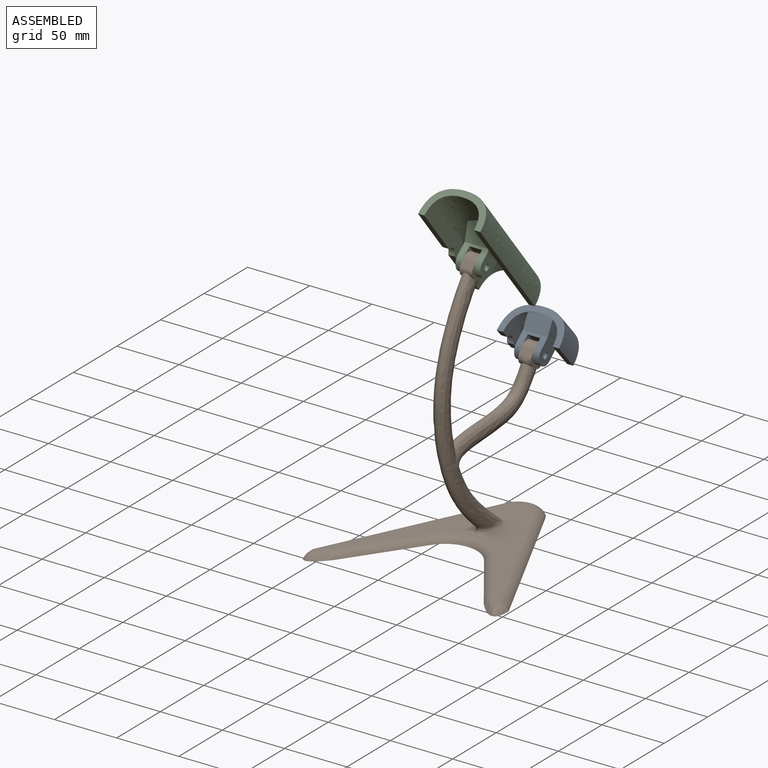
[diagram: assembled view]
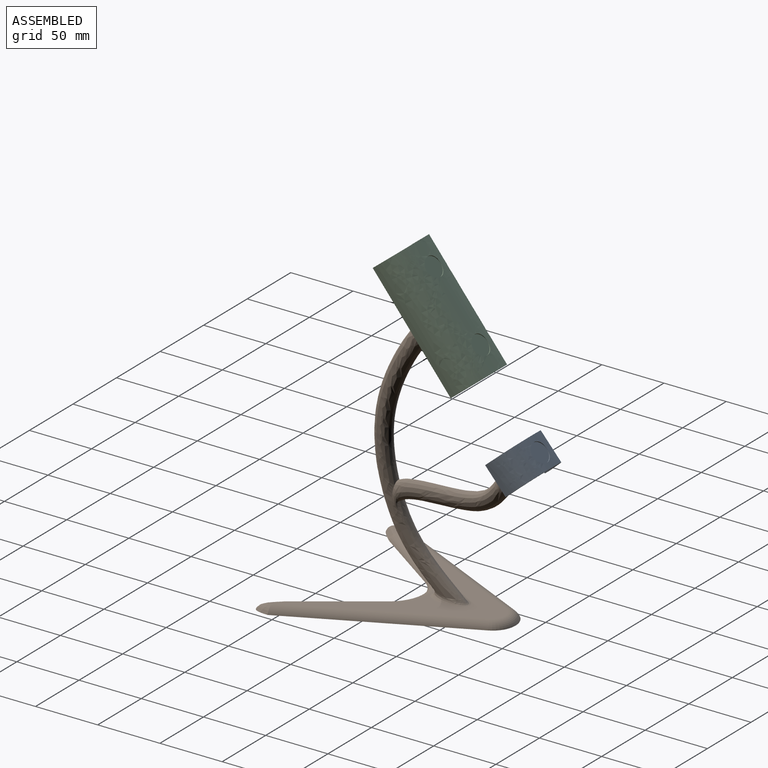
[diagram: assembled view, second angle]
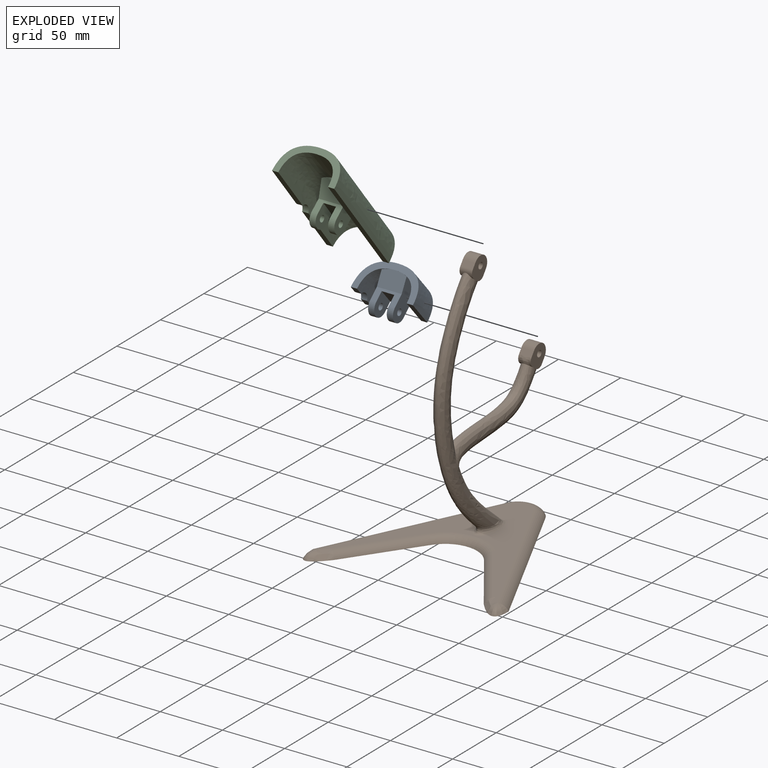
[diagram: exploded view]
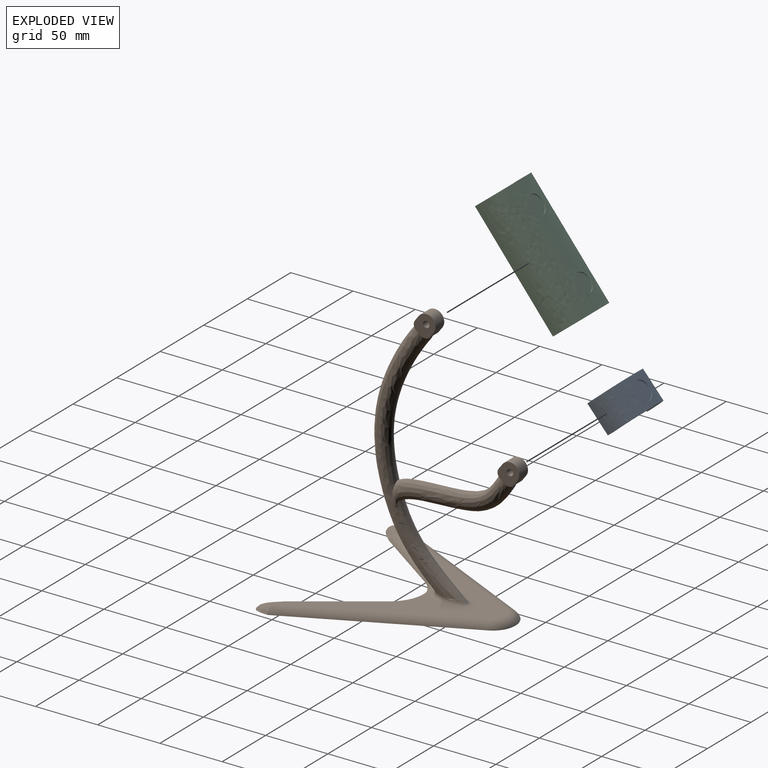
[diagram: exploded view, second angle]
ASSEMBLY  parts=3 mates=2
PART A: 25 faces, bbox 50x25x35.5 mm
  f0: plane 7.3x5mm, normal (0,0,-1), area 36.5mm2, adj f1,f17,f20,f24
  f1: extruded ~25x25mm, area 891.4mm2, adj f0,f2,f18,f20,f21,f22,f24
  f2: extruded ~25x25mm, area 913.5mm2, adj f1,f19,f20,f21,f22
  f3: plane 20x13mm, normal (0,-0.93,-0.36), area 267.4mm2, adj f5,f6,f7,f16,f17
  f4: plane 20x13mm, normal (0,0.93,-0.36), area 267.4mm2, adj f5,f6,f10,f16,f17
  f5: plane 28.78x23.68mm, normal (1,0,0), area 436.2mm2, adj f3,f4,f7,f8,f10,f11,f16
  f6: plane 28.78x23.68mm, normal (-1,0,0), area 436.2mm2, adj f3,f4,f7,f9,f10,f12,f17
  f7: plane 20x10mm, normal (0,-1,0), area 119.2mm2, adj f3,f5,f6,f8,f9,f13,f14,f15
  f8: cylinder r=7.5mm len=15mm, axis (-1,0,0), area 116.6mm2, adj f5,f7,f10,f14
  f9: cylinder r=7.5mm len=15mm, axis (-1,0,0), area 116.6mm2, adj f6,f7,f10,f15
  f10: plane 20x10mm, normal (0,1,0), area 119.2mm2, adj f4,f5,f6,f8,f9,f13,f14,f15
  f11: cylinder r=2.55mm len=5.1mm, axis (-1,0,0), area 79.3mm2, adj f5,f14
  f12: cylinder r=2.55mm len=5.1mm, axis (-1,0,0), area 79.3mm2, adj f6,f15
  f13: plane 15x10.1mm, normal (0,0,-1), area 151.5mm2, adj f7,f10,f14,f15
  f14: plane 15.5x15mm, normal (-1,0,0), area 187.9mm2, adj f7,f8,f10,f11,f13
  f15: plane 15.5x15mm, normal (1,0,0), area 187.9mm2, adj f7,f9,f10,f12,f13
  f16: extruded ~25x20mm, area 560.5mm2, adj f3,f4,f5,f19,f20,f21
  f17: extruded ~25x20mm, area 538.4mm2, adj f0,f3,f4,f6,f18,f20,f21,f24
  f18: plane 7.3x5mm, normal (0,0,-1), area 36.5mm2, adj f1,f17,f21,f24
  f19: plane 25x5mm, normal (0,0,-1), area 125mm2, adj f2,f16,f20,f21
  f20: plane 50x25mm, normal (0,-1,0), area 375mm2, adj f0,f1,f2,f16,f17,f19
  f21: plane 50x25mm, normal (0,1,0), area 375mm2, adj f1,f2,f16,f17,f18,f19
  f22: cylinder r=8mm len=16mm, axis (0,0,-1), area 31.5mm2, adj f1,f2,f23
  f23: plane 16x16mm, normal (0,0,1), area 201.1mm2, adj f22
  f24: cylinder r=6mm len=10.39mm, axis (1,0,0), area 63mm2, adj f0,f1,f17,f18
PART B: 52 faces, bbox 162.9x166.6x216.4 mm
  f0: plane 1.14x0.86mm, normal (0,-0.6,-0.8), area 0.1mm2, adj f3,f44,f50
  f1: plane 3.16x2.44mm, normal (0,-0.6,-0.8), area 0.9mm2, adj f3,f43,f49
  f2: plane 6.99x2.89mm, normal (0,1,0.06), area 10.5mm2, adj f3,f50
  f3: bspline ~100.95x67.48mm, area 3712.5mm2, adj f0,f1,f2,f16,f33,f38,f40,f48
  f4: plane 2.93x2.26mm, normal (0,-0.6,-0.8), area 0.6mm2, adj f11,f13,f33
  f5: plane 1.37x1.04mm, normal (0,-0.6,-0.8), area 0.1mm2, adj f11,f14,f33
  f6: plane 1.38x1.04mm, normal (0,-0.6,-0.8), area 0.1mm2, adj f12,f14,f33
  f7: plane 10x4mm, normal (0,-0.8,0.6), area 50mm2, adj f10,f11,f12,f13
  f8: plane 2.93x2.27mm, normal (0,-0.6,-0.8), area 0.6mm2, adj f12,f13,f33
  f9: plane 10x4mm, normal (0,0.8,-0.6), area 50mm2, adj f10,f11,f12,f14
  f10: cylinder r=7.5mm len=13.5mm, axis (-1,0,0), area 235.6mm2, adj f7,f9,f11,f12
  f11: plane 18x17.5mm, normal (1,0,0), area 207.2mm2, adj f4,f5,f7,f9,f10,f13,f14,f46
  f12: plane 18x17.5mm, normal (-1,0,0), area 207.2mm2, adj f6,f7,f8,f9,f10,f13,f14,f46
  f13: cylinder r=5mm len=10mm, axis (1,0,0), area 51.8mm2, adj f4,f7,f8,f11,f12,f33
  f14: cylinder r=5mm len=10mm, axis (-1,0,0), area 43.6mm2, adj f5,f6,f9,f11,f12,f32,f33
  f15: bspline ~101.26x74.9mm, area 755.1mm2, adj f31,f34,f35,f36,f37,f51
  f16: bspline ~64.04x57.03mm, area 1362.1mm2, adj f3,f31,f34,f35,f36,f37,f51
  f17: plane 144.45x137.4mm, normal (0,0,1), area 3778.5mm2, adj f19,f20,f21,f23,f24,f25,f26,f28
  f18: plane 162.91x159.71mm, normal (0,0,-1), area 8533.2mm2, adj f19,f20,f21,f22,f23,f24,f25,f26
  f19: cylinder r=8.5mm len=60.44mm, axis (-0.57,-0.82,0), area 663.5mm2, adj f17,f18,f20,f21
  f20: bspline ~20.69x19.21mm, area 110.6mm2, adj f17,f18,f19,f22
  f21: torus R=33.34mm, axis (0,0,1), area 543.5mm2, adj f17,f18,f19,f23
  f22: bspline ~12.02x9.79mm, area 86.8mm2, adj f18,f20,f24
  f23: cylinder r=8.5mm len=60.44mm, axis (-0.57,0.82,0), area 663.5mm2, adj f17,f18,f21,f25
  f24: bspline ~8.11x6.86mm, area 33.2mm2, adj f17,f18,f22,f26
  f25: bspline ~20.14x18.88mm, area 110.6mm2, adj f17,f18,f23,f27
  f26: cylinder r=8.5mm len=136.22mm, axis (0.43,0.9,0), area 1426.2mm2, adj f17,f18,f24,f28
  f27: bspline ~12.02x9.79mm, area 87.6mm2, adj f18,f25,f29
  f28: torus R=10.54mm, axis (0,0,-1), area 326.7mm2, adj f17,f18,f26,f30
  f29: bspline ~8.19x7.52mm, area 33.2mm2, adj f17,f18,f27,f30
  f30: cylinder r=8.5mm len=136.22mm, axis (0.43,-0.9,0), area 1426.2mm2, adj f17,f18,f28,f29
  f31: bspline ~54.65x52.72mm, area 355.2mm2, adj f15,f16,f33
  f32: plane 6.59x2.56mm, normal (0,1,0), area 8.8mm2, adj f14,f33
  f33: bspline ~163.53x44.32mm, area 5328.6mm2, adj f3,f4,f5,f6,f8,f13,f14,f31
  f34: bspline ~62.28x45.66mm, area 6.8mm2, adj f15,f16
  f35: bspline ~62.28x45.66mm, area 6.8mm2, adj f15,f16
  f36: bspline ~48.25x26.23mm, area 18.2mm2, adj f15,f16,f51
  f37: bspline ~48.25x26.23mm, area 19.4mm2, adj f15,f16,f51
  f38: plane 1.14x0.86mm, normal (0,-0.6,-0.8), area 0.1mm2, adj f3,f43,f50
  f39: plane 10x4.73mm, normal (0,-0.8,0.6), area 53.3mm2, adj f42,f43,f44,f47,f48,f49
  f40: plane 3.17x2.45mm, normal (0,-0.6,-0.8), area 0.9mm2, adj f3,f44,f47
  f41: plane 10x4mm, normal (0,0.8,-0.6), area 50mm2, adj f42,f43,f44,f50
  f42: cylinder r=7.5mm len=13.5mm, axis (-1,0,0), area 235.6mm2, adj f39,f41,f43,f44
  f43: plane 18x17.5mm, normal (1,0,0), area 207.2mm2, adj f1,f38,f39,f41,f42,f45,f49,f50
  f44: plane 18x17.5mm, normal (-1,0,0), area 207.2mm2, adj f0,f39,f40,f41,f42,f45,f47,f50
  f45: cylinder r=2.55mm len=10mm, axis (-1,0,0), area 160.2mm2, adj f43,f44
  f46: cylinder r=2.55mm len=10mm, axis (-1,0,0), area 160.2mm2, adj f11,f12
  f47: cylinder r=5mm len=7mm, axis (1,0,0), area 6.3mm2, adj f39,f40,f44,f48
  f48: bspline ~9.52x7.2mm, area 49.4mm2, adj f3,f39,f47,f49
  f49: cylinder r=5mm len=7mm, axis (1,0,0), area 6.3mm2, adj f1,f39,f43,f48
  f50: cylinder r=5mm len=10mm, axis (-1,0,0), area 45.8mm2, adj f0,f2,f3,f38,f41,f43,f44
  f51: bspline ~30.64x15.99mm, area 298.2mm2, adj f15,f16,f17,f36,f37
PART C: 27 faces, bbox 50x100x35.5 mm
  f0: plane 44.8x5mm, normal (0,0,-1), area 224mm2, adj f1,f17,f20,f26
  f1: extruded ~100x25mm, area 3834mm2, adj f0,f2,f18,f20,f21,f22,f24,f26
  f2: extruded ~100x25mm, area 3856.1mm2, adj f1,f19,f20,f21,f22,f24
  f3: plane 20x13mm, normal (0,-0.79,-0.61), area 314.8mm2, adj f5,f6,f7,f16,f17
  f4: plane 20x13mm, normal (0,0.79,-0.61), area 314.8mm2, adj f5,f6,f10,f16,f17
  f5: plane 32.36x28.78mm, normal (1,0,0), area 485.1mm2, adj f3,f4,f7,f8,f10,f11,f16
  f6: plane 32.36x28.78mm, normal (-1,0,0), area 485.1mm2, adj f3,f4,f7,f9,f10,f12,f17
  f7: plane 20x10mm, normal (0,-1,0), area 119.2mm2, adj f3,f5,f6,f8,f9,f13,f14,f15
  f8: cylinder r=7.5mm len=15mm, axis (-1,0,0), area 116.6mm2, adj f5,f7,f10,f14
  f9: cylinder r=7.5mm len=15mm, axis (-1,0,0), area 116.6mm2, adj f6,f7,f10,f15
  f10: plane 20x10mm, normal (0,1,0), area 119.2mm2, adj f4,f5,f6,f8,f9,f13,f14,f15
  f11: cylinder r=2.55mm len=5.1mm, axis (-1,0,0), area 79.3mm2, adj f5,f14
  f12: cylinder r=2.55mm len=5.1mm, axis (-1,0,0), area 79.3mm2, adj f6,f15
  f13: plane 15x10.1mm, normal (0,0,-1), area 151.5mm2, adj f7,f10,f14,f15
  f14: plane 15.5x15mm, normal (-1,0,0), area 187.9mm2, adj f7,f8,f10,f11,f13
  f15: plane 15.5x15mm, normal (1,0,0), area 187.9mm2, adj f7,f9,f10,f12,f13
  f16: extruded ~100x20mm, area 2897.5mm2, adj f3,f4,f5,f17,f19,f20,f21
  f17: extruded ~100x20mm, area 2875.3mm2, adj f0,f3,f4,f6,f16,f18,f20,f21
  f18: plane 44.8x5mm, normal (0,0,-1), area 224mm2, adj f1,f17,f21,f26
  f19: plane 100x5mm, normal (0,0,-1), area 500mm2, adj f2,f16,f20,f21
  f20: plane 50x25mm, normal (0,-1,0), area 375mm2, adj f0,f1,f2,f16,f17,f19
  f21: plane 50x25mm, normal (0,1,0), area 375mm2, adj f1,f2,f16,f17,f18,f19
  f22: cylinder r=8mm len=16mm, axis (0,0,-1), area 31.5mm2, adj f1,f2,f23
  f23: plane 16x16mm, normal (0,0,1), area 201.1mm2, adj f22
  f24: cylinder r=8mm len=16mm, axis (0,0,-1), area 31.5mm2, adj f1,f2,f25
  f25: plane 16x16mm, normal (0,0,1), area 201.1mm2, adj f24
  f26: cylinder r=6mm len=10.39mm, axis (1,0,0), area 63mm2, adj f0,f1,f17,f18
PLACE A rot(axis=(-1,0,0),48.8deg) t=(64.95,142.31,112.85)mm
PLACE B at identity fixed
PLACE C rot(axis=(-1,0,0),51.2deg) t=(64.95,75,202.5)mm
MATE revolute B.f10 <-> C.f11  axis (1,0,0) through (80,75,202.5)mm
MATE revolute B.f42 <-> A.f11  axis (1,0,0) through (80,142.31,112.85)mm
